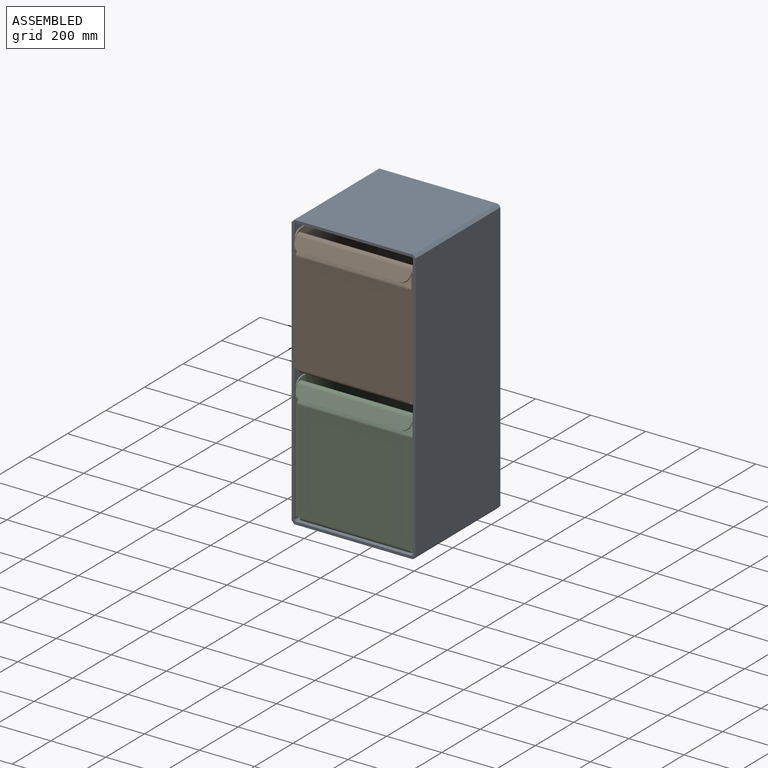
[diagram: assembled view]
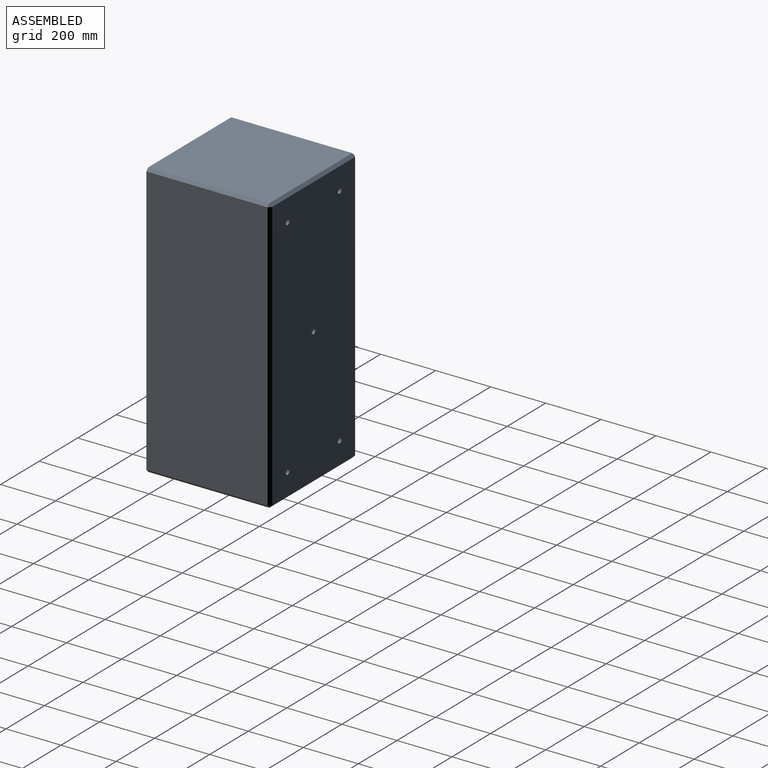
[diagram: assembled view, second angle]
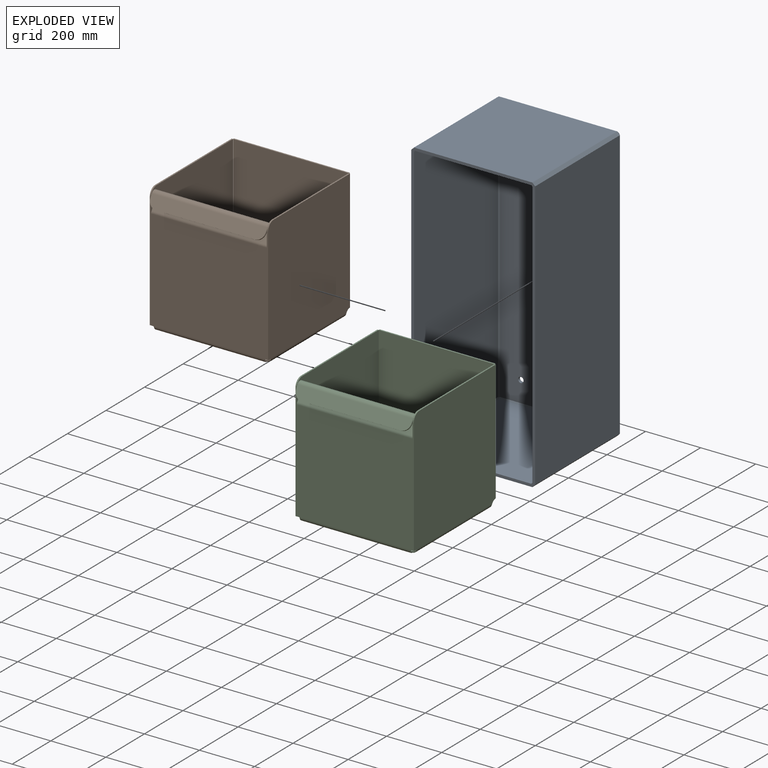
[diagram: exploded view]
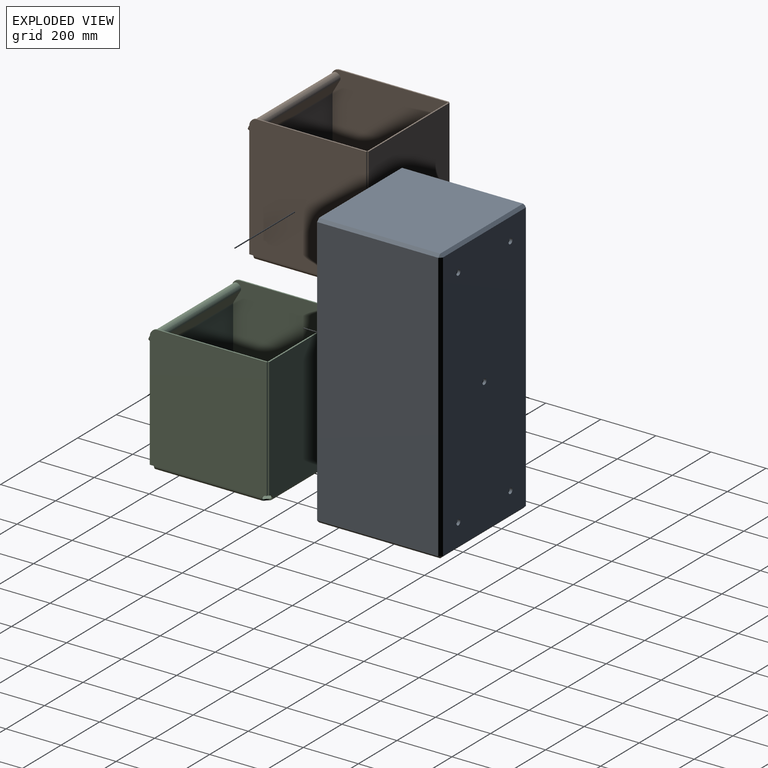
[diagram: exploded view, second angle]
ASSEMBLY  parts=3 mates=2
PART A: 40 faces, bbox 450x450x1000 mm
  f0: plane 1000x450mm, normal (0,-1,0), area 28434.3mm2, adj f1,f2,f3,f4,f6,f8,f11,f14
  f1: plane 440x430mm, normal (0,0,-1), area 189200mm2, adj f0,f6,f11,f12
  f2: plane 980x440mm, normal (1,0,0), area 431200mm2, adj f0,f6,f7,f8
  f3: plane 440x430mm, normal (0,0,1), area 189200mm2, adj f0,f8,f13,f14
  f4: plane 980x440mm, normal (-1,0,0), area 431200mm2, adj f0,f11,f14,f17
  f5: plane 980x430mm, normal (0,1,0), area 419829.2mm2, adj f7,f12,f13,f17,f35,f36,f37,f38
  f6: plane 440x10mm, normal (0.71,0,-0.71), area 6222.5mm2, adj f0,f1,f2,f9
  f7: plane 980x10mm, normal (0.71,0.71,0), area 13859.3mm2, adj f2,f5,f9,f10
  f8: plane 440x10mm, normal (0.71,0,0.71), area 6222.5mm2, adj f0,f2,f3,f10
  f9: plane 10x10mm, normal (0.58,0.58,-0.58), area 86.6mm2, adj f6,f7,f12
  f10: plane 10x10mm, normal (0.58,0.58,0.58), area 86.6mm2, adj f7,f8,f13
  f11: plane 440x10mm, normal (-0.71,0,-0.71), area 6222.5mm2, adj f0,f1,f4,f15
  f12: plane 430x10mm, normal (0,0.71,-0.71), area 6081.1mm2, adj f1,f5,f9,f15
  f13: plane 430x10mm, normal (0,0.71,0.71), area 6081.1mm2, adj f3,f5,f10,f16
  f14: plane 440x10mm, normal (-0.71,0,0.71), area 6222.5mm2, adj f0,f3,f4,f16
  f15: plane 10x10mm, normal (-0.58,0.58,-0.58), area 86.6mm2, adj f11,f12,f17
  f16: plane 10x10mm, normal (-0.58,0.58,0.58), area 86.6mm2, adj f13,f14,f17
  f17: plane 980x10mm, normal (-0.71,0.71,0), area 13859.3mm2, adj f4,f5,f15,f16
  f18: plane 435.86x421.72mm, normal (0,0,1), area 183808.1mm2, adj f0,f23,f28,f29
  f19: plane 971.72x435.86mm, normal (-1,0,0), area 423529.9mm2, adj f0,f23,f24,f25
  f20: plane 435.86x421.72mm, normal (0,0,-1), area 183808.1mm2, adj f0,f25,f30,f31
  f21: plane 971.72x435.86mm, normal (1,0,0), area 423529.9mm2, adj f0,f28,f31,f34
  f22: plane 971.72x421.72mm, normal (0,-1,0), area 408217mm2, adj f24,f29,f30,f34,f35,f36,f37,f38
  f23: plane 436.82x4.14mm, normal (-0.71,0,0.71), area 2557.5mm2, adj f0,f18,f19,f24,f26,f29
  f24: plane 973.64x4.14mm, normal (-0.71,-0.71,0), area 5700.8mm2, adj f19,f22,f23,f25,f26,f27,f29,f30
  f25: plane 436.82x4.14mm, normal (-0.71,0,-0.71), area 2557.5mm2, adj f0,f19,f20,f24,f27,f30
  f26: plane 2.21x2.21mm, normal (-0.58,-0.58,0.58), area 4.2mm2, adj f23,f24,f29
  f27: plane 2.21x2.21mm, normal (-0.58,-0.58,-0.58), area 4.2mm2, adj f24,f25,f30
  f28: plane 436.82x4.14mm, normal (0.71,0,0.71), area 2557.5mm2, adj f0,f18,f21,f29,f32,f34
  f29: plane 423.64x4.14mm, normal (0,-0.71,0.71), area 2479mm2, adj f18,f22,f23,f24,f26,f28,f32,f34
  f30: plane 423.64x4.14mm, normal (0,-0.71,-0.71), area 2479mm2, adj f20,f22,f24,f25,f27,f31,f33,f34
  f31: plane 436.82x4.14mm, normal (0.71,0,-0.71), area 2557.5mm2, adj f0,f20,f21,f30,f33,f34
  f32: plane 2.21x2.21mm, normal (0.58,-0.58,0.58), area 4.2mm2, adj f28,f29,f34
  f33: plane 2.21x2.21mm, normal (0.58,-0.58,-0.58), area 4.2mm2, adj f30,f31,f34
  f34: plane 973.64x4.14mm, normal (0.71,-0.71,0), area 5700.8mm2, adj f21,f22,f28,f29,f30,f31,f32,f33
  f35: cylinder r=10mm len=20mm, axis (0,1,0), area 628.3mm2, adj f5,f22
  f36: cylinder r=10mm len=20mm, axis (0,1,0), area 628.3mm2, adj f5,f22
  f37: cylinder r=10mm len=20mm, axis (0,1,0), area 628.3mm2, adj f5,f22
  f38: cylinder r=10mm len=20mm, axis (0,1,0), area 628.3mm2, adj f5,f22
  f39: cylinder r=10mm len=20mm, axis (0,1,0), area 628.3mm2, adj f5,f22
PART B: 82 faces, bbox 448.8x430x465 mm
  f0: plane 439.21x5mm, normal (1,0,0), area 2196.1mm2, adj f2,f5,f8,f10
  f1: plane 10x5mm, normal (0,0,-1), area 50mm2, adj f2,f6,f8,f15
  f2: plane 450x424.97mm, normal (0,1,0), area 190918.8mm2, adj f0,f1,f3,f4,f5,f6,f7,f9
  f3: plane 5x0.03mm, normal (0,0,-1), area 0.1mm2, adj f2,f4,f7,f8
  f4: plane 52x5mm, normal (-1,0,0), area 260mm2, adj f2,f3,f8,f9
  f5: plane 396.97x5mm, normal (0,0,1), area 1984.9mm2, adj f0,f2,f8,f9
  f6: plane 5x4.97mm, normal (0,0,-1), area 24.9mm2, adj f1,f2,f7,f8
  f7: plane 370x5mm, normal (-1,0,0), area 1850mm2, adj f2,f3,f6,f8
  f8: plane 450x424.97mm, normal (0,-1,0), area 190918.8mm2, adj f0,f1,f3,f4,f5,f6,f7,f9
  f9: cylinder r=28mm len=28mm, axis (0,1,0), area 219.9mm2, adj f2,f4,f5,f8
  f10: cylinder r=20.41mm len=18.35mm, axis (0,-1,0), area 112mm2, adj f0,f2,f8,f16
  f11: plane 400x400mm, normal (0,0,-1), area 159915.9mm2, adj f13,f14,f17,f32,f36,f40
  f12: plane 400x400mm, normal (0,0,1), area 159915.9mm2, adj f13,f14,f18,f33,f37,f41
  f13: cylinder r=20.41mm len=8.38mm, axis (0,0,1), area 60.1mm2, adj f11,f12,f31,f38
  f14: cylinder r=20.41mm len=8.38mm, axis (0,0,1), area 60.1mm2, adj f11,f12,f16,f39
  f15: plane 15x15mm, normal (-1,0,0), area 98.2mm2, adj f1,f17,f18,f35
  f16: bspline ~15x15mm, area 102.1mm2, adj f10,f14,f17,f18
  f17: cylinder r=15mm len=391.62mm, axis (1,0,0), area 9189mm2, adj f2,f11,f15,f16
  f18: cylinder r=10mm len=391.62mm, axis (1,0,0), area 6126mm2, adj f8,f12,f15,f16
  f19: plane 10x5mm, normal (0,0,-1), area 50mm2, adj f25,f26,f27,f30
  f20: plane 439.21x5mm, normal (1,0,0), area 2196.1mm2, adj f21,f26,f27,f29
  f21: plane 396.97x5mm, normal (0,0,1), area 1984.9mm2, adj f20,f26,f27,f28
  f22: plane 52x5mm, normal (-1,0,0), area 260mm2, adj f23,f26,f27,f28
  f23: plane 5x0.03mm, normal (0,0,-1), area 0.1mm2, adj f22,f24,f26,f27
  f24: plane 370x5mm, normal (-1,0,0), area 1850mm2, adj f23,f25,f26,f27
  f25: plane 5x4.97mm, normal (0,0,-1), area 24.9mm2, adj f19,f24,f26,f27
  f26: plane 450x424.97mm, normal (0,-1,0), area 190918.8mm2, adj f19,f20,f21,f22,f23,f24,f25,f28
  f27: plane 450x424.97mm, normal (0,1,0), area 190918.8mm2, adj f19,f20,f21,f22,f23,f24,f25,f28
  f28: cylinder r=28mm len=28mm, axis (0,-1,0), area 219.9mm2, adj f21,f22,f26,f27
  f29: cylinder r=20.41mm len=18.35mm, axis (0,1,0), area 112mm2, adj f20,f26,f27,f31
  f30: plane 15x15mm, normal (-1,0,0), area 98.2mm2, adj f19,f32,f33,f34
  f31: bspline ~15x15mm, area 102.1mm2, adj f13,f29,f32,f33
  f32: cylinder r=15mm len=391.62mm, axis (1,0,0), area 9189mm2, adj f11,f26,f30,f31
  f33: cylinder r=10mm len=391.62mm, axis (1,0,0), area 6126mm2, adj f12,f27,f30,f31
  f34: plane 15x15mm, normal (0,-1,0), area 98.2mm2, adj f30,f36,f37,f51
  f35: plane 15x15mm, normal (0,1,0), area 98.2mm2, adj f15,f36,f37,f49
  f36: cylinder r=15mm len=400mm, axis (0,-1,0), area 9424.8mm2, adj f11,f34,f35,f53
  f37: cylinder r=10mm len=400mm, axis (0,-1,0), area 6283.2mm2, adj f12,f34,f35,f54
  f38: bspline ~15x15mm, area 102.1mm2, adj f13,f40,f41,f47
  f39: bspline ~15x15mm, area 102.1mm2, adj f14,f40,f41,f48
  f40: cylinder r=15mm len=383.24mm, axis (0,-1,0), area 8953.3mm2, adj f11,f38,f39,f44
  f41: cylinder r=10mm len=383.24mm, axis (0,-1,0), area 5968.9mm2, adj f12,f38,f39,f46
  f42: plane 439.21x5mm, normal (0,-1,0), area 2196.1mm2, adj f44,f45,f46,f47
  f43: plane 439.21x5mm, normal (0,1,0), area 2196.1mm2, adj f44,f45,f46,f48
  f44: plane 450x419.95mm, normal (1,0,0), area 188692.9mm2, adj f40,f42,f43,f45,f47,f48
  f45: plane 419.95x5mm, normal (0,0,1), area 2099.7mm2, adj f42,f43,f44,f46
  f46: plane 450x419.95mm, normal (-1,0,0), area 188692.9mm2, adj f41,f42,f43,f45,f47,f48
  f47: cylinder r=20.41mm len=18.35mm, axis (-1,0,0), area 112mm2, adj f38,f42,f44,f46
  f48: cylinder r=20.41mm len=18.35mm, axis (-1,0,0), area 112mm2, adj f39,f43,f44,f46
  f49: plane 9.97x5mm, normal (0,0,-1), area 49.9mm2, adj f35,f50,f53,f54
  f50: plane 367.32x5mm, normal (0,1,0), area 1836.6mm2, adj f49,f53,f54,f56
  f51: plane 9.97x5mm, normal (0,0,-1), area 49.9mm2, adj f34,f52,f53,f54
  f52: plane 367.32x5mm, normal (0,-1,0), area 1836.6mm2, adj f51,f53,f54,f55
  f53: plane 419.95x367.32mm, normal (-1,0,0), area 154256mm2, adj f36,f49,f50,f51,f52,f57
  f54: plane 419.95x367.32mm, normal (1,0,0), area 154256mm2, adj f37,f49,f50,f51,f52,f58
  f55: plane 7.5x6.34mm, normal (0,-1,0), area 32.7mm2, adj f52,f57,f58,f60
  f56: plane 7.5x6.34mm, normal (0,1,0), area 32.7mm2, adj f50,f57,f58,f59
  f57: cylinder r=15mm len=419.95mm, axis (0,-1,0), area 3298.3mm2, adj f53,f55,f56,f61
  f58: cylinder r=10mm len=419.95mm, axis (0,-1,0), area 2198.8mm2, adj f54,f55,f56,f62
  f59: plane 46.65x29.82mm, normal (0,1,0), area 254.9mm2, adj f56,f61,f62,f72
  f60: plane 46.65x29.82mm, normal (0,-1,0), area 254.9mm2, adj f55,f61,f62,f71
  f61: plane 419.95x44.15mm, normal (-0.87,0,0.5), area 21409.3mm2, adj f57,f59,f60,f74
  f62: plane 419.95x44.15mm, normal (0.87,0,-0.5), area 21409.3mm2, adj f58,f59,f60,f73
  f63: plane 5.58x4.67mm, normal (0,1,0), area 12.5mm2, adj f65,f66,f68,f72
  f64: plane 5.58x4.67mm, normal (0,-1,0), area 12.5mm2, adj f65,f66,f67,f71
  f65: plane 419.95x2.17mm, normal (-0.5,0,-0.87), area 1049.9mm2, adj f63,f64,f70,f74
  f66: plane 419.95x2.17mm, normal (0.5,0,0.87), area 1049.9mm2, adj f63,f64,f69,f73
  f67: plane 20.49x10mm, normal (0,-1,0), area 98.2mm2, adj f64,f69,f70,f77
  f68: plane 20.49x10mm, normal (0,1,0), area 98.2mm2, adj f63,f69,f70,f76
  f69: cylinder r=15mm len=419.95mm, axis (0,-1,0), area 9894.8mm2, adj f66,f67,f68,f79
  f70: cylinder r=10mm len=419.95mm, axis (0,-1,0), area 6596.5mm2, adj f65,f67,f68,f78
  f71: plane 20.49x10mm, normal (0,-1,0), area 98.2mm2, adj f60,f64,f73,f74
  f72: plane 20.49x10mm, normal (0,1,0), area 98.2mm2, adj f59,f63,f73,f74
  f73: cylinder r=15mm len=419.95mm, axis (0,-1,0), area 9894.8mm2, adj f62,f66,f71,f72
  f74: cylinder r=10mm len=419.95mm, axis (0,-1,0), area 6596.5mm2, adj f61,f65,f71,f72
  f75: plane 359.95x4.33mm, normal (-0.5,0,-0.87), area 1799.7mm2, adj f78,f79,f80,f81
  f76: plane 15.49x11.83mm, normal (0,1,0), area 75mm2, adj f68,f78,f79,f80
  f77: plane 15.49x11.83mm, normal (0,-1,0), area 75mm2, adj f67,f78,f79,f81
  f78: plane 419.95x38.97mm, normal (0.87,0,-0.5), area 18511.4mm2, adj f70,f75,f76,f77,f80,f81
  f79: plane 419.95x38.97mm, normal (-0.87,0,0.5), area 18511.4mm2, adj f69,f75,f76,f77,f80,f81
  f80: cylinder r=30mm len=30mm, axis (0.87,0,-0.5), area 235.6mm2, adj f75,f76,f78,f79
  f81: cylinder r=30mm len=30mm, axis (0.87,0,-0.5), area 235.6mm2, adj f75,f77,f78,f79
PART C: same geometry as B
PLACE A at identity fixed
PLACE B rot(axis=(0,0,1),90deg) t=(-61.84,-397.29,503.88)mm
PLACE C rot(axis=(0,0,1),90deg) t=(-61.84,-391.08,15)mm
MATE planar A.f18 <-> C.f11  axis (0,0,1) through (-225,-232.07,10)mm
MATE planar B.f2 <-> A.f21  axis (-1,0,0) through (-440,-238.28,738.86)mm
